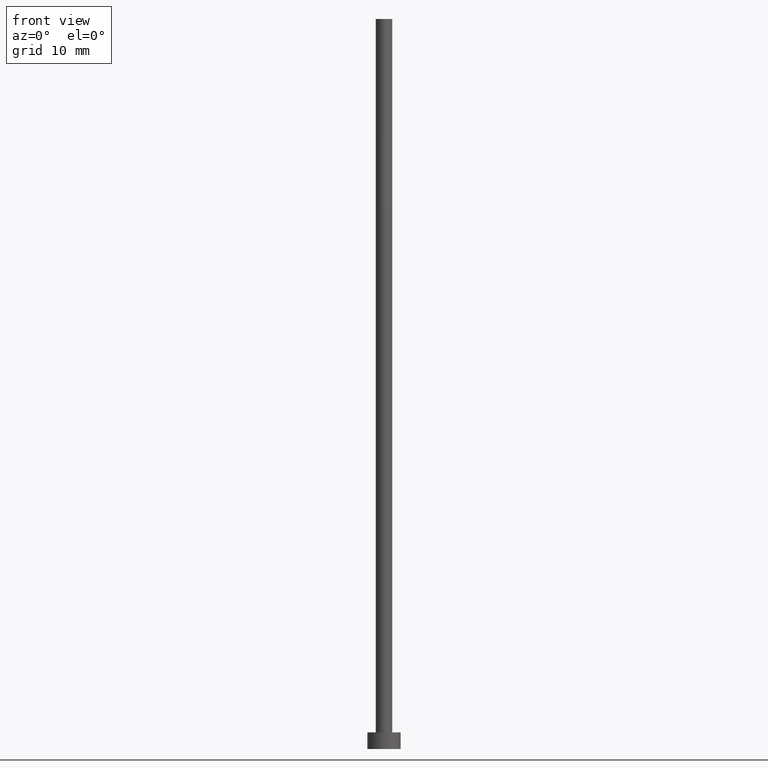
[diagram: clean part render]
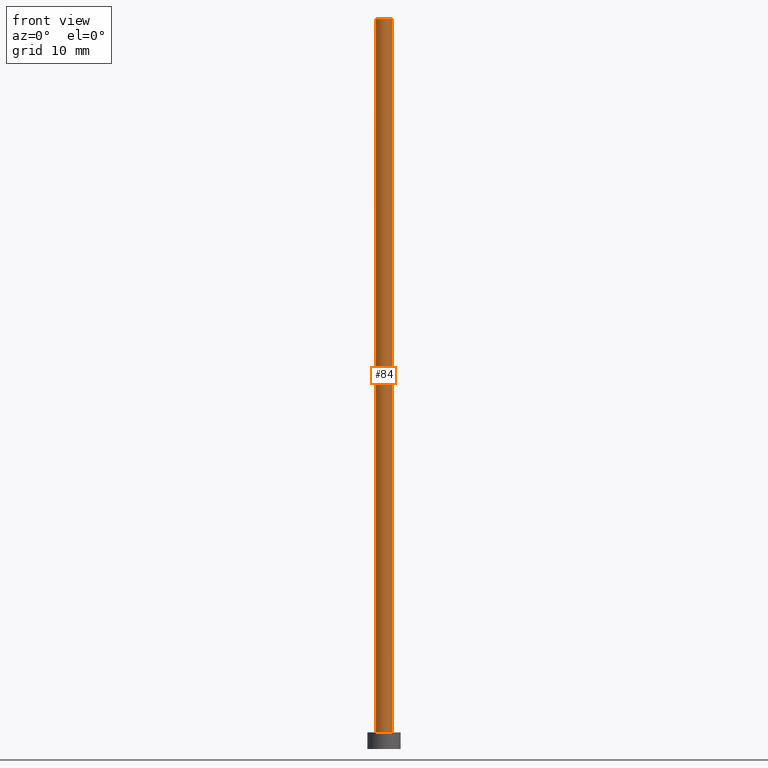
[diagram: same view with one face highlighted and labeled with its STEP entity id]
A machine part, front view. The second image highlights one B-rep face of the part: STEP entity #84.
In plain terms, the highlighted cylindrical surface (edge-blend (fillet) strip) has radius 1 mm, axis along (-0, -0, -1).
Its self-contained STEP definition (entity closure, byte-faithful):
#3 = DIRECTION ( 'NONE',  ( -0.000000000000000000, -0.000000000000000000, -1.000000000000000000 ) ) ;
#11 = ORIENTED_EDGE ( 'NONE', *, *, #19, .T. ) ;
#16 = DIRECTION ( 'NONE',  ( -0.000000000000000000, -0.000000000000000000, -1.000000000000000000 ) ) ;
#19 = EDGE_CURVE ( 'NONE', #199, #225, #220, .T. ) ;
#31 = AXIS2_PLACEMENT_3D ( 'NONE', #229, #210, #108 ) ;
#35 = AXIS2_PLACEMENT_3D ( 'NONE', #208, #135, #167 ) ;
#44 = CARTESIAN_POINT ( 'NONE',  ( 1.000000000000000000, 1.224646799147353207E-16, 2.000000000000000000 ) ) ;
#45 = DIRECTION ( 'NONE',  ( 0.000000000000000000, 0.000000000000000000, 1.000000000000000000 ) ) ;
#50 = CARTESIAN_POINT ( 'NONE',  ( -1.000000000000000000, 0.000000000000000000, 88.00000000000000000 ) ) ;
#57 = EDGE_LOOP ( 'NONE', ( #87, #227, #11, #141 ) ) ;
#79 = CARTESIAN_POINT ( 'NONE',  ( 1.000000000000000000, 1.224646799147353207E-16, 88.00000000000000000 ) ) ;
#84 = ADVANCED_FACE ( 'NONE', ( #255 ), #211, .T. ) ;
#86 = CIRCLE ( 'NONE', #226, 1.000000000000000000 ) ;
#87 = ORIENTED_EDGE ( 'NONE', *, *, #184, .F. ) ;
#99 = CARTESIAN_POINT ( 'NONE',  ( 0.000000000000000000, 0.000000000000000000, 2.000000000000000000 ) ) ;
#108 = DIRECTION ( 'NONE',  ( 1.000000000000000000, 0.000000000000000000, 0.000000000000000000 ) ) ;
#109 = CARTESIAN_POINT ( 'NONE',  ( -1.000000000000000000, 0.000000000000000000, 88.00000000000000000 ) ) ;
#114 = CARTESIAN_POINT ( 'NONE',  ( 1.000000000000000000, 1.224646799147353207E-16, 88.00000000000000000 ) ) ;
#117 = VECTOR ( 'NONE', #3, 1000.000000000000000 ) ;
#122 = VERTEX_POINT ( 'NONE', #44 ) ;
#135 = DIRECTION ( 'NONE',  ( -0.000000000000000000, -0.000000000000000000, -1.000000000000000000 ) ) ;
#141 = ORIENTED_EDGE ( 'NONE', *, *, #159, .T. ) ;
#150 = CARTESIAN_POINT ( 'NONE',  ( -1.000000000000000000, 0.000000000000000000, 2.000000000000000000 ) ) ;
#154 = DIRECTION ( 'NONE',  ( 1.000000000000000000, 0.000000000000000000, 0.000000000000000000 ) ) ;
#159 = EDGE_CURVE ( 'NONE', #225, #122, #86, .T. ) ;
#166 = LINE ( 'NONE', #79, #117 ) ;
#167 = DIRECTION ( 'NONE',  ( -1.000000000000000000, 0.000000000000000000, 0.000000000000000000 ) ) ;
#177 = CIRCLE ( 'NONE', #31, 1.000000000000000000 ) ;
#184 = EDGE_CURVE ( 'NONE', #241, #122, #166, .T. ) ;
#199 = VERTEX_POINT ( 'NONE', #109 ) ;
#208 = CARTESIAN_POINT ( 'NONE',  ( 0.000000000000000000, 0.000000000000000000, 88.00000000000000000 ) ) ;
#210 = DIRECTION ( 'NONE',  ( 0.000000000000000000, 0.000000000000000000, 1.000000000000000000 ) ) ;
#211 = CYLINDRICAL_SURFACE ( 'NONE', #35, 1.000000000000000000 ) ;
#212 = VECTOR ( 'NONE', #16, 1000.000000000000000 ) ;
#220 = LINE ( 'NONE', #50, #212 ) ;
#221 = EDGE_CURVE ( 'NONE', #199, #241, #177, .T. ) ;
#225 = VERTEX_POINT ( 'NONE', #150 ) ;
#226 = AXIS2_PLACEMENT_3D ( 'NONE', #99, #45, #154 ) ;
#227 = ORIENTED_EDGE ( 'NONE', *, *, #221, .F. ) ;
#229 = CARTESIAN_POINT ( 'NONE',  ( 0.000000000000000000, 0.000000000000000000, 88.00000000000000000 ) ) ;
#241 = VERTEX_POINT ( 'NONE', #114 ) ;
#255 = FACE_OUTER_BOUND ( 'NONE', #57, .T. ) ;